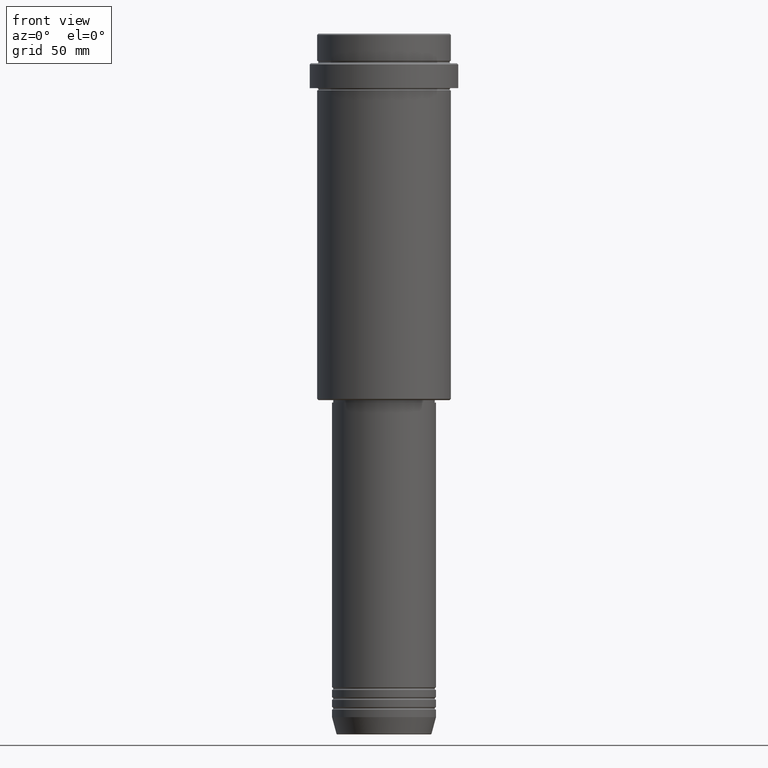
[diagram: clean part render]
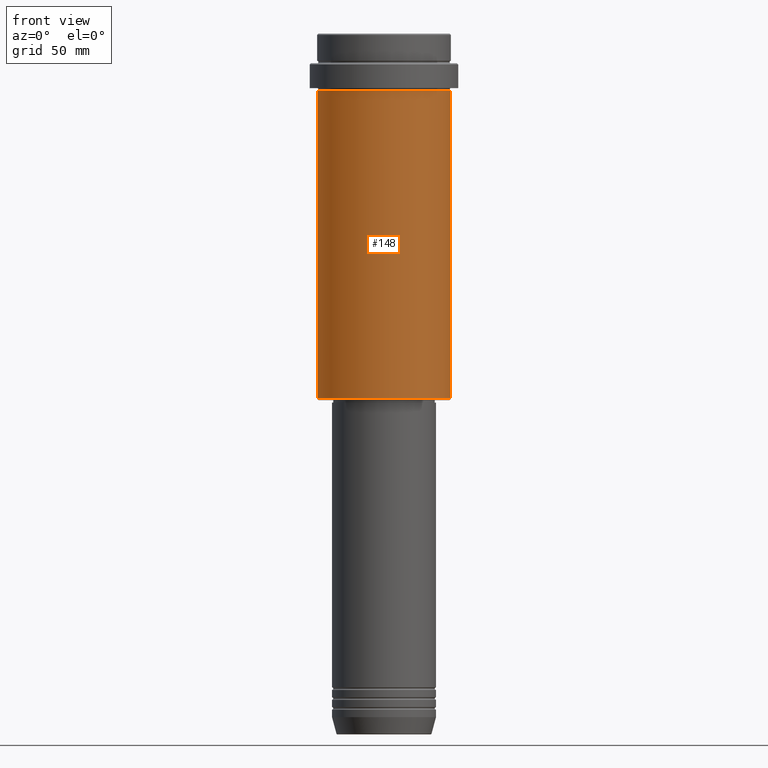
[diagram: same view with one face highlighted and labeled with its STEP entity id]
A machine part, front view. The second image highlights one B-rep face of the part: STEP entity #148.
In plain terms, the highlighted cylindrical surface (partial cylindrical patch) has radius 27 mm, axis along (-0, -0, 1).
Its self-contained STEP definition (entity closure, byte-faithful):
#20 = DIRECTION ( 'NONE',  ( -0.000000000000000000, -0.000000000000000000, 1.000000000000000000 ) ) ;
#58 = VERTEX_POINT ( 'NONE', #382 ) ;
#72 = DIRECTION ( 'NONE',  ( -0.000000000000000000, -0.000000000000000000, 1.000000000000000000 ) ) ;
#100 = ORIENTED_EDGE ( 'NONE', *, *, #833, .F. ) ;
#115 = EDGE_CURVE ( 'NONE', #58, #205, #743, .T. ) ;
#148 = ADVANCED_FACE ( 'NONE', ( #770 ), #327, .T. ) ;
#205 = VERTEX_POINT ( 'NONE', #225 ) ;
#225 = CARTESIAN_POINT ( 'NONE',  ( 26.99999999999999645, 0.000000000000000000, -23.00000000000000000 ) ) ;
#254 = VECTOR ( 'NONE', #1267, 1000.000000000000000 ) ;
#327 = CYLINDRICAL_SURFACE ( 'NONE', #409, 26.99999999999999645 ) ;
#345 = CIRCLE ( 'NONE', #737, 26.99999999999999645 ) ;
#382 = CARTESIAN_POINT ( 'NONE',  ( 26.99999999999999645, 0.000000000000000000, -147.5000000000000853 ) ) ;
#388 = CIRCLE ( 'NONE', #645, 26.99999999999999645 ) ;
#409 = AXIS2_PLACEMENT_3D ( 'NONE', #554, #867, #1302 ) ;
#446 = ORIENTED_EDGE ( 'NONE', *, *, #955, .F. ) ;
#454 = ORIENTED_EDGE ( 'NONE', *, *, #115, .T. ) ;
#505 = CARTESIAN_POINT ( 'NONE',  ( -26.99999999999999645, 3.306546357697853339E-15, -147.5000000000000853 ) ) ;
#538 = DIRECTION ( 'NONE',  ( -1.000000000000000000, 0.000000000000000000, 0.000000000000000000 ) ) ;
#554 = CARTESIAN_POINT ( 'NONE',  ( 0.000000000000000000, 0.000000000000000000, 0.000000000000000000 ) ) ;
#560 = CARTESIAN_POINT ( 'NONE',  ( -26.99999999999999645, 3.306546357697853339E-15, -23.00000000000000000 ) ) ;
#589 = EDGE_CURVE ( 'NONE', #1192, #58, #345, .T. ) ;
#645 = AXIS2_PLACEMENT_3D ( 'NONE', #1047, #72, #813 ) ;
#671 = LINE ( 'NONE', #1234, #1064 ) ;
#674 = EDGE_LOOP ( 'NONE', ( #100, #703, #454, #446 ) ) ;
#703 = ORIENTED_EDGE ( 'NONE', *, *, #589, .T. ) ;
#730 = CARTESIAN_POINT ( 'NONE',  ( 26.99999999999999645, 0.000000000000000000, 0.000000000000000000 ) ) ;
#737 = AXIS2_PLACEMENT_3D ( 'NONE', #1076, #1217, #538 ) ;
#743 = LINE ( 'NONE', #730, #254 ) ;
#770 = FACE_OUTER_BOUND ( 'NONE', #674, .T. ) ;
#813 = DIRECTION ( 'NONE',  ( 1.000000000000000000, 0.000000000000000000, 0.000000000000000000 ) ) ;
#833 = EDGE_CURVE ( 'NONE', #1192, #870, #671, .T. ) ;
#867 = DIRECTION ( 'NONE',  ( -0.000000000000000000, -0.000000000000000000, 1.000000000000000000 ) ) ;
#870 = VERTEX_POINT ( 'NONE', #560 ) ;
#955 = EDGE_CURVE ( 'NONE', #870, #205, #388, .T. ) ;
#1047 = CARTESIAN_POINT ( 'NONE',  ( 0.000000000000000000, 0.000000000000000000, -23.00000000000000000 ) ) ;
#1064 = VECTOR ( 'NONE', #20, 1000.000000000000000 ) ;
#1076 = CARTESIAN_POINT ( 'NONE',  ( 0.000000000000000000, 0.000000000000000000, -147.5000000000000853 ) ) ;
#1192 = VERTEX_POINT ( 'NONE', #505 ) ;
#1217 = DIRECTION ( 'NONE',  ( -0.000000000000000000, -0.000000000000000000, 1.000000000000000000 ) ) ;
#1234 = CARTESIAN_POINT ( 'NONE',  ( -26.99999999999999645, 3.306546357697853339E-15, 0.000000000000000000 ) ) ;
#1267 = DIRECTION ( 'NONE',  ( -0.000000000000000000, -0.000000000000000000, 1.000000000000000000 ) ) ;
#1302 = DIRECTION ( 'NONE',  ( 1.000000000000000000, 0.000000000000000000, 0.000000000000000000 ) ) ;